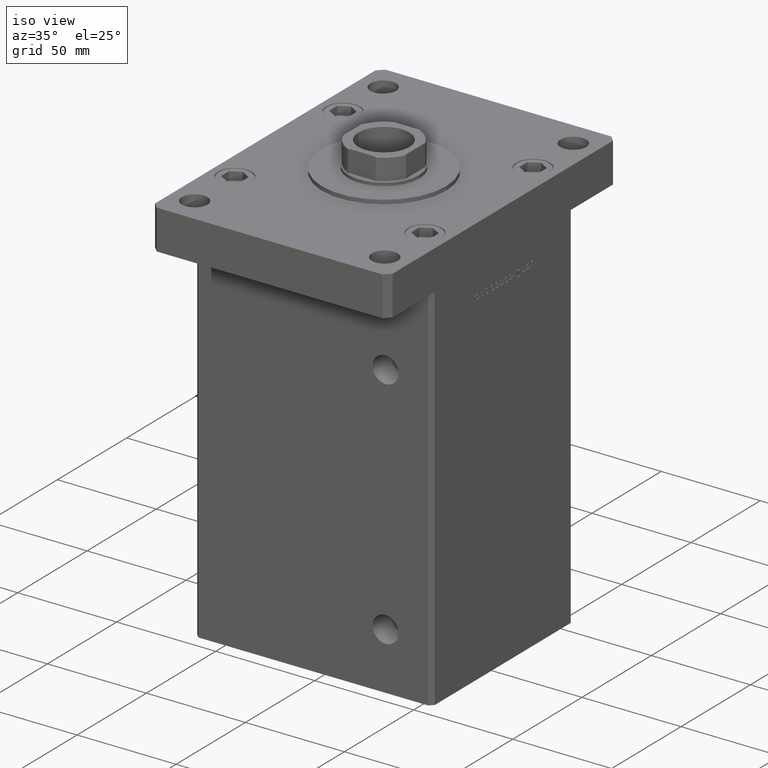
[diagram: clean part render]
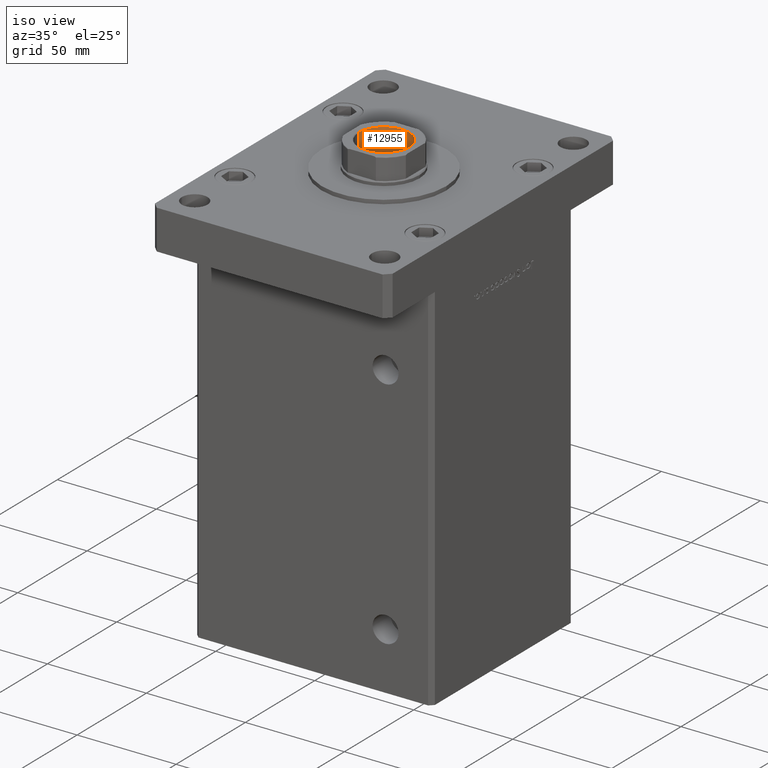
[diagram: same view with one face highlighted and labeled with its STEP entity id]
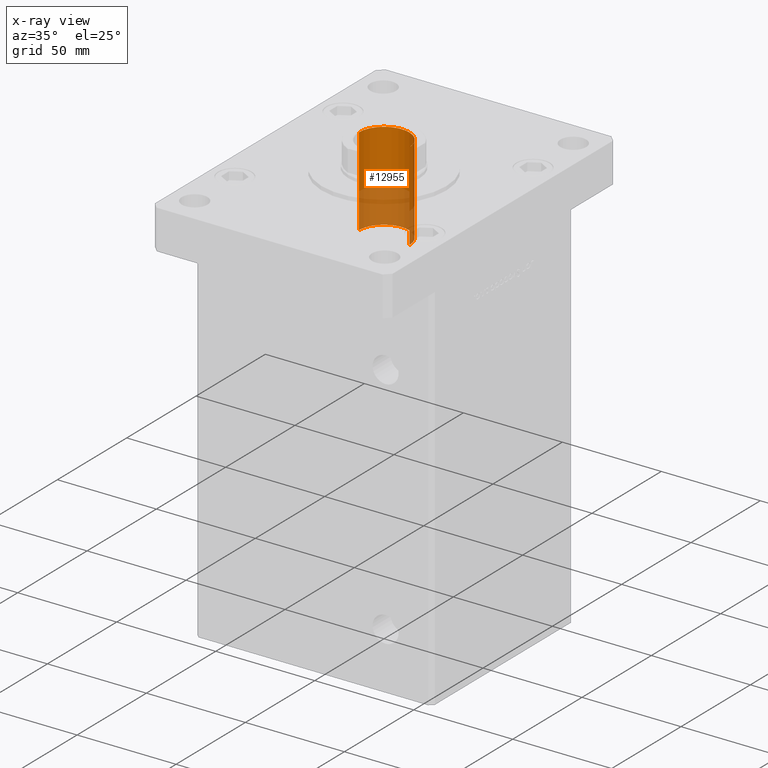
[diagram: x-ray of the same camera — body ghosted, the highlighted face saturated]
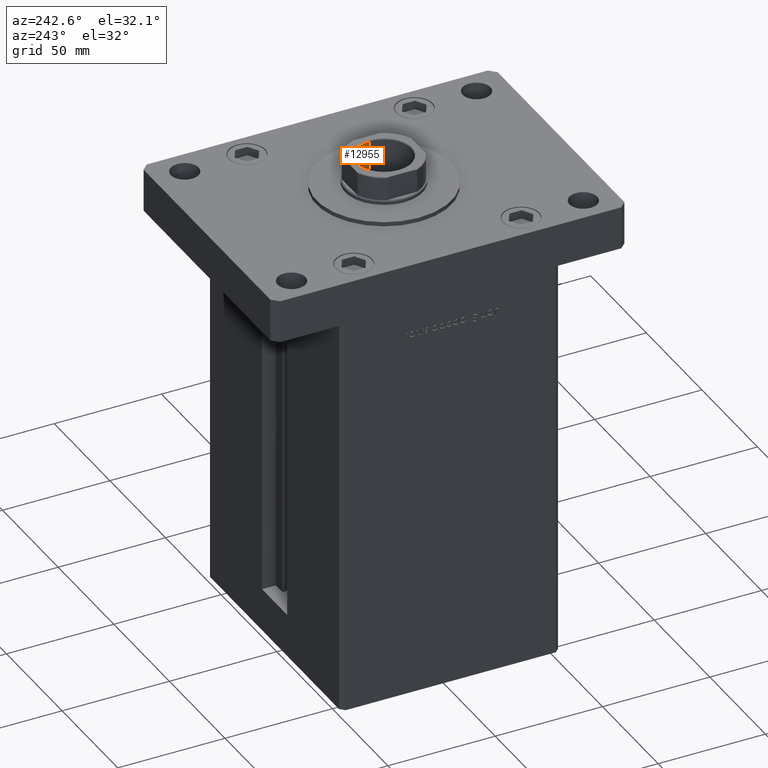
[diagram: same view with one face highlighted and labeled with its STEP entity id]
A machine part, iso view. The second image highlights one B-rep face of the part: STEP entity #12955.
The next image is the same camera in x-ray: the body ghosted, the highlighted face saturated — about 39% of this face is hidden behind the body in this view.
A second angle (auxiliary view) of the same face is appended — the face is thin or edge-on in the first view.
In plain terms, the highlighted cylindrical surface (edge-blend (fillet) strip) has radius 12.75 mm, axis along (0, 0, 1).
Its self-contained STEP definition (entity closure, byte-faithful):
#101 = VERTEX_POINT ( 'NONE', #53814 ) ;
#746 = VECTOR ( 'NONE', #17956, 1000.000000000000000 ) ;
#1381 = VERTEX_POINT ( 'NONE', #26976 ) ;
#1671 = DIRECTION ( 'NONE',  ( -0.000000000000000000, -0.000000000000000000, 1.000000000000000000 ) ) ;
#1792 = CYLINDRICAL_SURFACE ( 'NONE', #5495, 12.74999999999999467 ) ;
#3441 = EDGE_LOOP ( 'NONE', ( #12799, #8480, #32401, #13329 ) ) ;
#4842 = CARTESIAN_POINT ( 'NONE',  ( 12.74999999999999112, 0.000000000000000000, 144.2500000000000000 ) ) ;
#5495 = AXIS2_PLACEMENT_3D ( 'NONE', #37758, #51557, #5867 ) ;
#5867 = DIRECTION ( 'NONE',  ( 1.000000000000000000, 0.000000000000000000, 0.000000000000000000 ) ) ;
#7555 = AXIS2_PLACEMENT_3D ( 'NONE', #34172, #13239, #46693 ) ;
#8480 = ORIENTED_EDGE ( 'NONE', *, *, #22819, .F. ) ;
#12799 = ORIENTED_EDGE ( 'NONE', *, *, #14254, .F. ) ;
#12955 = ADVANCED_FACE ( 'NONE', ( #45923 ), #1792, .F. ) ;
#13239 = DIRECTION ( 'NONE',  ( -0.000000000000000000, -0.000000000000000000, 1.000000000000000000 ) ) ;
#13329 = ORIENTED_EDGE ( 'NONE', *, *, #51954, .T. ) ;
#14254 = EDGE_CURVE ( 'NONE', #1381, #44824, #26428, .T. ) ;
#14695 = LINE ( 'NONE', #47598, #746 ) ;
#17956 = DIRECTION ( 'NONE',  ( -0.000000000000000000, -0.000000000000000000, 1.000000000000000000 ) ) ;
#20806 = CIRCLE ( 'NONE', #27763, 12.74999999999999467 ) ;
#22819 = EDGE_CURVE ( 'NONE', #33046, #1381, #35341, .T. ) ;
#25437 = DIRECTION ( 'NONE',  ( 0.000000000000000000, 0.000000000000000000, 1.000000000000000000 ) ) ;
#26428 = LINE ( 'NONE', #46006, #48978 ) ;
#26976 = CARTESIAN_POINT ( 'NONE',  ( -12.74999999999999112, 1.561424668912874125E-15, 144.2500000000000000 ) ) ;
#27763 = AXIS2_PLACEMENT_3D ( 'NONE', #46096, #25437, #38471 ) ;
#28882 = EDGE_CURVE ( 'NONE', #33046, #101, #14695, .T. ) ;
#32401 = ORIENTED_EDGE ( 'NONE', *, *, #28882, .T. ) ;
#33046 = VERTEX_POINT ( 'NONE', #4842 ) ;
#34172 = CARTESIAN_POINT ( 'NONE',  ( 0.000000000000000000, 0.000000000000000000, 144.2500000000000000 ) ) ;
#35341 = CIRCLE ( 'NONE', #7555, 12.74999999999999112 ) ;
#37500 = CARTESIAN_POINT ( 'NONE',  ( -12.74999999999999467, 1.561424668912874519E-15, 188.9499999999999886 ) ) ;
#37758 = CARTESIAN_POINT ( 'NONE',  ( 0.000000000000000000, 0.000000000000000000, 189.2500000000000000 ) ) ;
#38471 = DIRECTION ( 'NONE',  ( 1.000000000000000000, 0.000000000000000000, 0.000000000000000000 ) ) ;
#44824 = VERTEX_POINT ( 'NONE', #37500 ) ;
#45923 = FACE_OUTER_BOUND ( 'NONE', #3441, .T. ) ;
#46006 = CARTESIAN_POINT ( 'NONE',  ( -12.74999999999999467, 1.561424668912874519E-15, 189.2500000000000000 ) ) ;
#46096 = CARTESIAN_POINT ( 'NONE',  ( 0.000000000000000000, 0.000000000000000000, 188.9499999999999886 ) ) ;
#46693 = DIRECTION ( 'NONE',  ( 1.000000000000000000, 0.000000000000000000, 0.000000000000000000 ) ) ;
#47598 = CARTESIAN_POINT ( 'NONE',  ( 12.74999999999999467, 0.000000000000000000, 189.2500000000000000 ) ) ;
#48978 = VECTOR ( 'NONE', #1671, 1000.000000000000000 ) ;
#51557 = DIRECTION ( 'NONE',  ( -0.000000000000000000, -0.000000000000000000, 1.000000000000000000 ) ) ;
#51954 = EDGE_CURVE ( 'NONE', #101, #44824, #20806, .T. ) ;
#53814 = CARTESIAN_POINT ( 'NONE',  ( 12.74999999999999467, 0.000000000000000000, 188.9499999999999886 ) ) ;